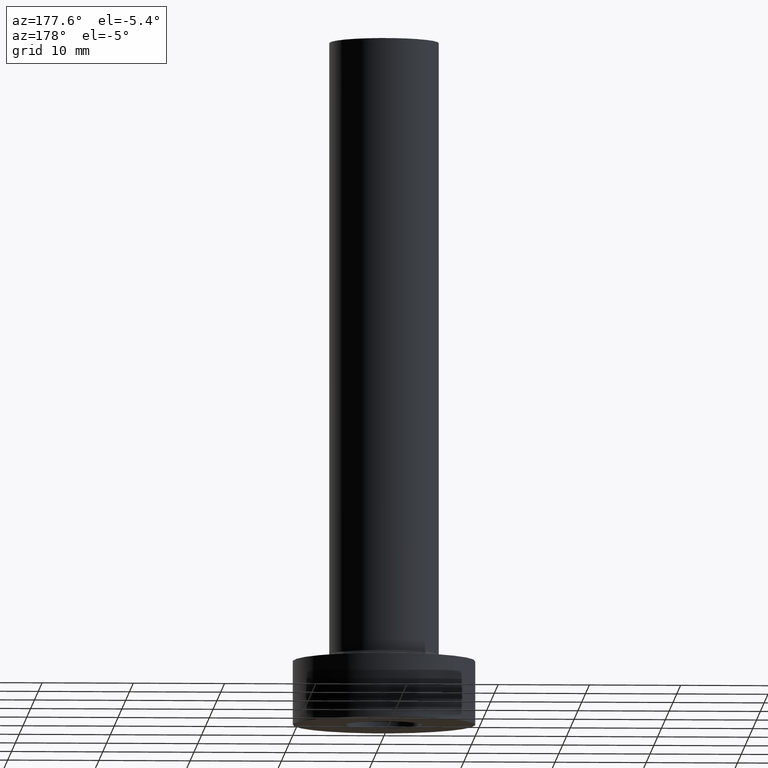
[diagram: clean part render]
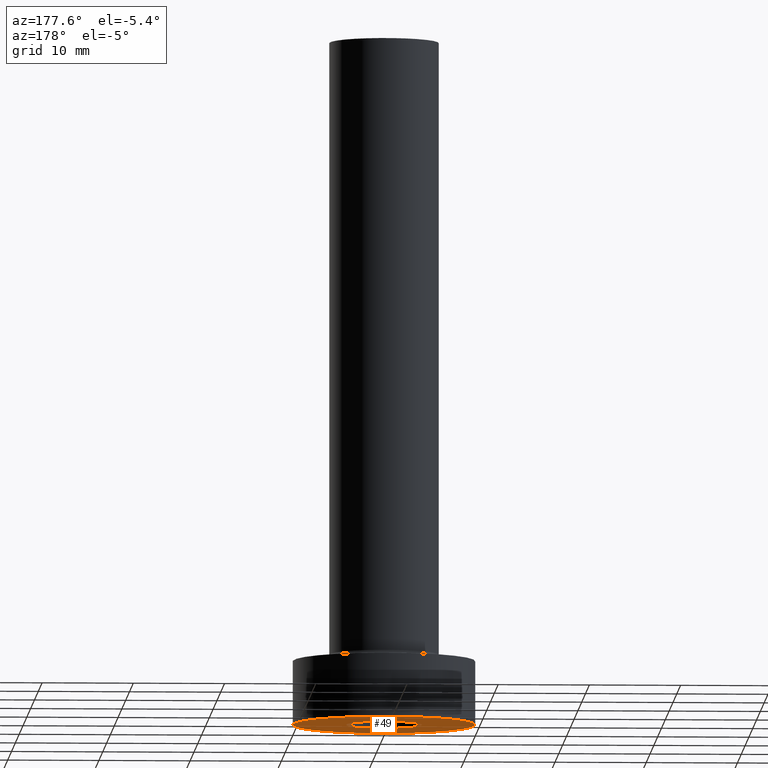
[diagram: same view with one face highlighted and labeled with its STEP entity id]
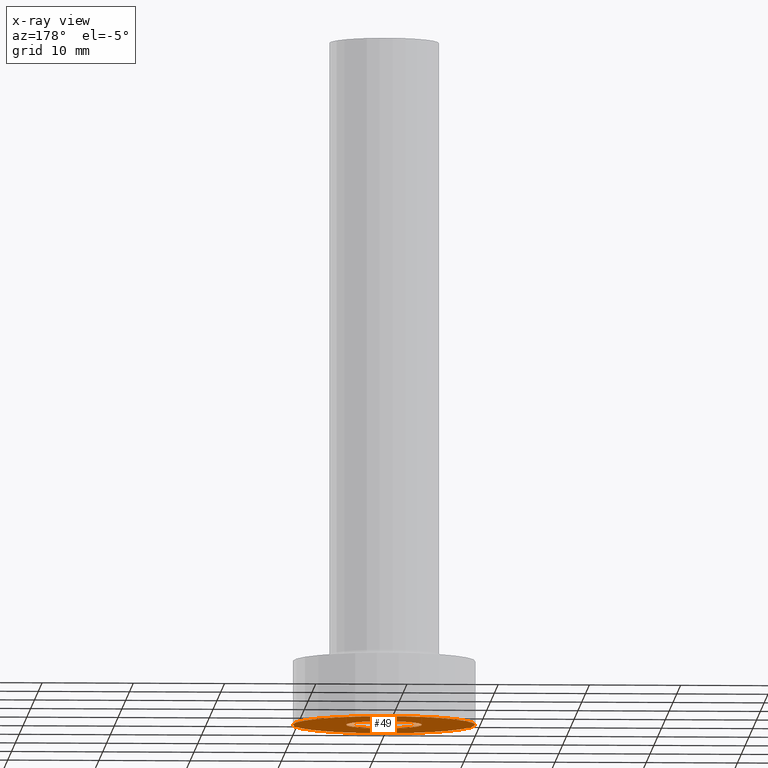
[diagram: x-ray of the same camera — body ghosted, the highlighted face saturated]
A machine part, auxiliary view. The second image highlights one B-rep face of the part: STEP entity #49.
The next image is the same camera in x-ray: the body ghosted, the highlighted face saturated — about 0% of this face is hidden behind the body in this view.
In plain terms, the highlighted planar face has unit normal (0, 0, 1).
Its self-contained STEP definition (entity closure, byte-faithful):
#9 = VERTEX_POINT ( 'NONE', #399 ) ;
#10 = VERTEX_POINT ( 'NONE', #187 ) ;
#29 = EDGE_CURVE ( 'NONE', #9, #10, #445, .T. ) ;
#40 = ORIENTED_EDGE ( 'NONE', *, *, #303, .F. ) ;
#49 = ADVANCED_FACE ( 'NONE', ( #428, #191 ), #156, .F. ) ;
#72 = AXIS2_PLACEMENT_3D ( 'NONE', #454, #141, #167 ) ;
#82 = AXIS2_PLACEMENT_3D ( 'NONE', #249, #171, #281 ) ;
#97 = DIRECTION ( 'NONE',  ( -0.000000000000000000, -0.000000000000000000, -1.000000000000000000 ) ) ;
#141 = DIRECTION ( 'NONE',  ( 0.000000000000000000, 0.000000000000000000, 1.000000000000000000 ) ) ;
#146 = CARTESIAN_POINT ( 'NONE',  ( 0.000000000000000000, 0.000000000000000000, 0.000000000000000000 ) ) ;
#156 = PLANE ( 'NONE',  #299 ) ;
#157 = EDGE_LOOP ( 'NONE', ( #177, #40 ) ) ;
#167 = DIRECTION ( 'NONE',  ( 1.000000000000000000, 0.000000000000000000, 0.000000000000000000 ) ) ;
#171 = DIRECTION ( 'NONE',  ( -0.000000000000000000, -0.000000000000000000, -1.000000000000000000 ) ) ;
#177 = ORIENTED_EDGE ( 'NONE', *, *, #228, .F. ) ;
#187 = CARTESIAN_POINT ( 'NONE',  ( 10.00000000000000000, 1.224646799147353256E-15, 0.000000000000000000 ) ) ;
#191 = FACE_OUTER_BOUND ( 'NONE', #255, .T. ) ;
#195 = DIRECTION ( 'NONE',  ( 0.000000000000000000, 0.000000000000000000, 1.000000000000000000 ) ) ;
#200 = CIRCLE ( 'NONE', #72, 10.00000000000000000 ) ;
#221 = DIRECTION ( 'NONE',  ( 1.000000000000000000, 0.000000000000000000, 0.000000000000000000 ) ) ;
#228 = EDGE_CURVE ( 'NONE', #333, #302, #287, .T. ) ;
#245 = CARTESIAN_POINT ( 'NONE',  ( -4.150000000000000355, 0.000000000000000000, 0.000000000000000000 ) ) ;
#249 = CARTESIAN_POINT ( 'NONE',  ( 0.000000000000000000, 0.000000000000000000, 0.000000000000000000 ) ) ;
#255 = EDGE_LOOP ( 'NONE', ( #332, #262 ) ) ;
#262 = ORIENTED_EDGE ( 'NONE', *, *, #268, .F. ) ;
#264 = DIRECTION ( 'NONE',  ( 1.000000000000000000, 0.000000000000000000, -0.000000000000000000 ) ) ;
#268 = EDGE_CURVE ( 'NONE', #10, #9, #200, .T. ) ;
#281 = DIRECTION ( 'NONE',  ( 1.000000000000000000, 0.000000000000000000, 0.000000000000000000 ) ) ;
#282 = CIRCLE ( 'NONE', #82, 4.150000000000000355 ) ;
#287 = CIRCLE ( 'NONE', #313, 4.150000000000000355 ) ;
#298 = DIRECTION ( 'NONE',  ( 1.000000000000000000, 0.000000000000000000, 0.000000000000000000 ) ) ;
#299 = AXIS2_PLACEMENT_3D ( 'NONE', #433, #195, #264 ) ;
#302 = VERTEX_POINT ( 'NONE', #314 ) ;
#303 = EDGE_CURVE ( 'NONE', #302, #333, #282, .T. ) ;
#313 = AXIS2_PLACEMENT_3D ( 'NONE', #345, #97, #298 ) ;
#314 = CARTESIAN_POINT ( 'NONE',  ( 4.150000000000000355, 5.082284216461515156E-16, 0.000000000000000000 ) ) ;
#332 = ORIENTED_EDGE ( 'NONE', *, *, #29, .F. ) ;
#333 = VERTEX_POINT ( 'NONE', #245 ) ;
#335 = DIRECTION ( 'NONE',  ( 0.000000000000000000, 0.000000000000000000, 1.000000000000000000 ) ) ;
#345 = CARTESIAN_POINT ( 'NONE',  ( 0.000000000000000000, 0.000000000000000000, 0.000000000000000000 ) ) ;
#390 = AXIS2_PLACEMENT_3D ( 'NONE', #146, #335, #221 ) ;
#399 = CARTESIAN_POINT ( 'NONE',  ( -10.00000000000000000, 0.000000000000000000, 0.000000000000000000 ) ) ;
#428 = FACE_BOUND ( 'NONE', #157, .T. ) ;
#433 = CARTESIAN_POINT ( 'NONE',  ( 0.000000000000000000, 0.000000000000000000, 0.000000000000000000 ) ) ;
#445 = CIRCLE ( 'NONE', #390, 10.00000000000000000 ) ;
#454 = CARTESIAN_POINT ( 'NONE',  ( 0.000000000000000000, 0.000000000000000000, 0.000000000000000000 ) ) ;